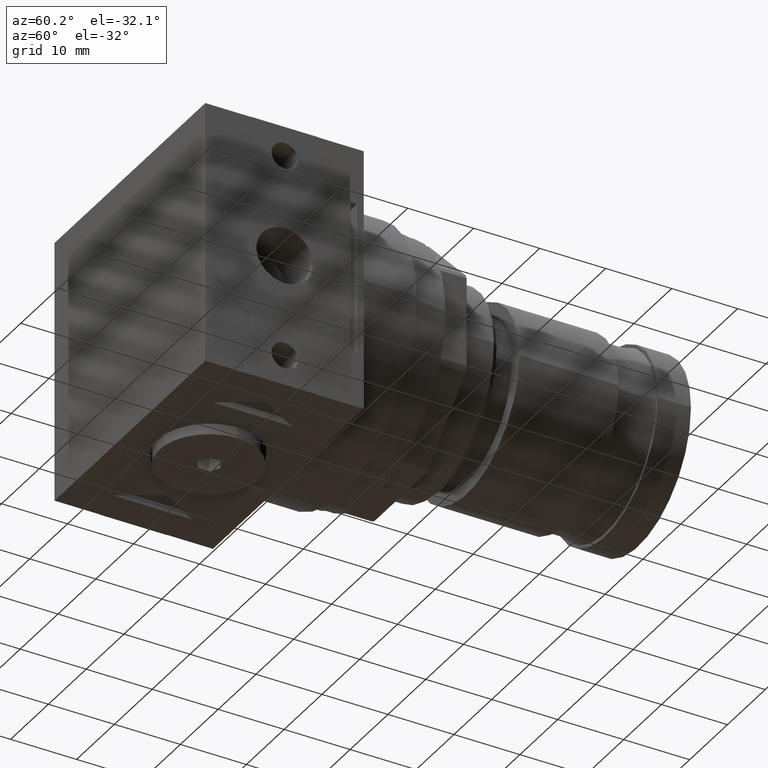
[diagram: clean part render]
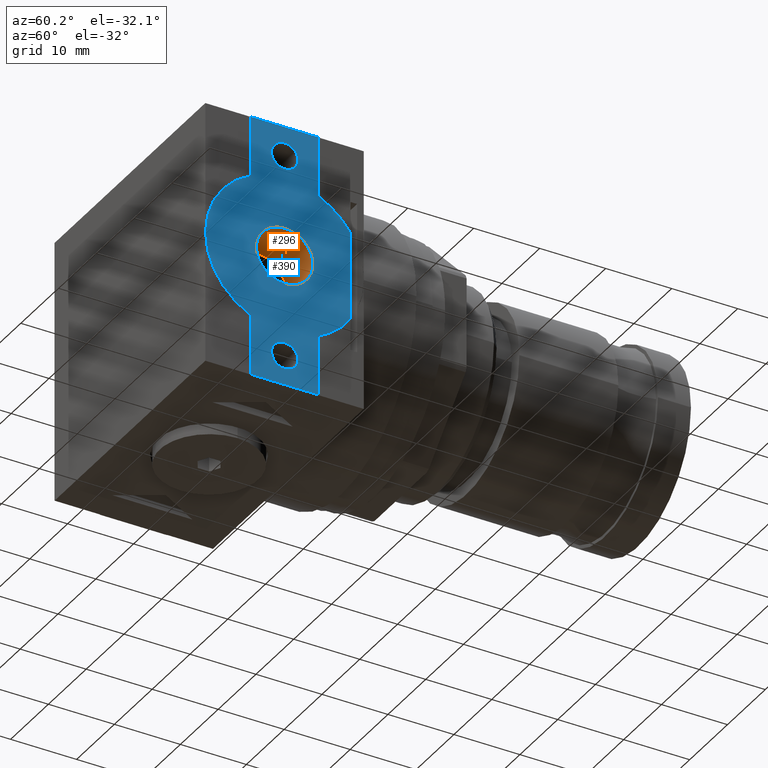
[diagram: same view with the hole feature highlighted: cylindrical wall and planar end face, labeled with their STEP entity ids]
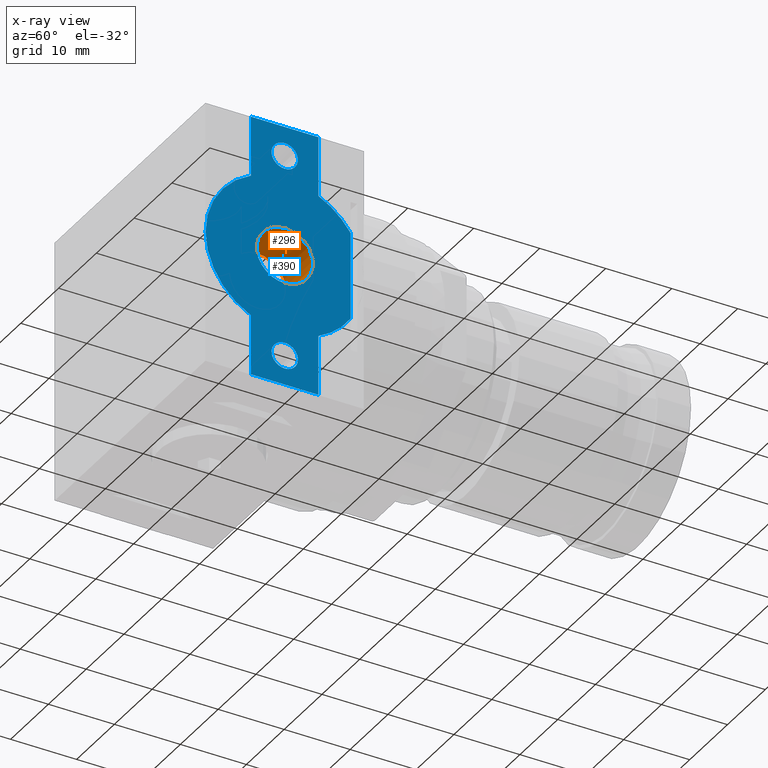
[diagram: x-ray of the same camera — body ghosted, the hole faces saturated]
A machine part, auxiliary view. The highlighted faces form one hole feature of diameter 8.566 mm: the cylindrical wall (entity #296, orange) and its adjacent planar end face (entity #390, blue) — they share a circular edge in the B-rep.
The next image is the same camera in x-ray (body ghosted, the hole faces saturated) — the bore reads through the body.
Wall:
#296 = ADVANCED_FACE( '', ( #643, #644 ), #645, .F. );
#643 = FACE_OUTER_BOUND( '', #1088, .T. );
#644 = FACE_OUTER_BOUND( '', #1089, .T. );
#645 = CYLINDRICAL_SURFACE( '', #1090, 4.28300000000000 );
#1088 = EDGE_LOOP( '', ( #1733 ) );
#1089 = EDGE_LOOP( '', ( #1734 ) );
#1090 = AXIS2_PLACEMENT_3D( '', #1735, #1736, #1737 );
#1733 = ORIENTED_EDGE( '', *, *, #2604, .T. );
#1734 = ORIENTED_EDGE( '', *, *, #2605, .F. );
#1735 = CARTESIAN_POINT( '', ( 20.0000000000000, 0.000000000000000, 0.000000000000000 ) );
#1736 = DIRECTION( '', ( -1.00000000000000, -0.000000000000000, 0.000000000000000 ) );
#1737 = DIRECTION( '', ( -0.000000000000000, 0.000000000000000, -1.00000000000000 ) );
#2604 = EDGE_CURVE( '', #3110, #3110, #3111, .T. );
#2605 = EDGE_CURVE( '', #3112, #3112, #3113, .T. );
#3110 = VERTEX_POINT( '', #3779 );
#3111 = CIRCLE( '', #3780, 4.28300000000000 );
#3112 = VERTEX_POINT( '', #3781 );
#3113 = CIRCLE( '', #3782, 4.28300000000000 );
#3779 = CARTESIAN_POINT( '', ( 20.0000000000000, 0.000000000000000, -4.28300000000000 ) );
#3780 = AXIS2_PLACEMENT_3D( '', #4372, #4373, #4374 );
#3781 = CARTESIAN_POINT( '', ( 12.8000000000000, 0.000000000000000, -4.28300000000000 ) );
#3782 = AXIS2_PLACEMENT_3D( '', #4375, #4376, #4377 );
#4372 = CARTESIAN_POINT( '', ( 20.0000000000000, 0.000000000000000, 0.000000000000000 ) );
#4373 = DIRECTION( '', ( 1.00000000000000, 0.000000000000000, -0.000000000000000 ) );
#4374 = DIRECTION( '', ( -0.000000000000000, 0.000000000000000, -1.00000000000000 ) );
#4375 = CARTESIAN_POINT( '', ( 12.8000000000000, 0.000000000000000, 0.000000000000000 ) );
#4376 = DIRECTION( '', ( 1.00000000000000, 0.000000000000000, -0.000000000000000 ) );
#4377 = DIRECTION( '', ( -0.000000000000000, 0.000000000000000, -1.00000000000000 ) );
End face:
#390 = ADVANCED_FACE( '', ( #809, #810, #811, #812 ), #813, .T. );
#809 = FACE_BOUND( '', #1254, .T. );
#810 = FACE_OUTER_BOUND( '', #1255, .T. );
#811 = FACE_BOUND( '', #1256, .T. );
#812 = FACE_BOUND( '', #1257, .T. );
#813 = PLANE( '', #1258 );
#1254 = EDGE_LOOP( '', ( #2114 ) );
#1255 = EDGE_LOOP( '', ( #2115, #2116, #2117, #2118, #2119, #2120, #2121, #2122, #2123, #2124 ) );
#1256 = EDGE_LOOP( '', ( #2125 ) );
#1257 = EDGE_LOOP( '', ( #2126 ) );
#1258 = AXIS2_PLACEMENT_3D( '', #2127, #2128, #2129 );
#2114 = ORIENTED_EDGE( '', *, *, #2604, .F. );
#2115 = ORIENTED_EDGE( '', *, *, #2757, .F. );
#2116 = ORIENTED_EDGE( '', *, *, #2758, .T. );
#2117 = ORIENTED_EDGE( '', *, *, #2754, .T. );
#2118 = ORIENTED_EDGE( '', *, *, #2670, .T. );
#2119 = ORIENTED_EDGE( '', *, *, #2427, .T. );
#2120 = ORIENTED_EDGE( '', *, *, #2674, .T. );
#2121 = ORIENTED_EDGE( '', *, *, #2706, .T. );
#2122 = ORIENTED_EDGE( '', *, *, #2748, .T. );
#2123 = ORIENTED_EDGE( '', *, *, #2759, .T. );
#2124 = ORIENTED_EDGE( '', *, *, #2740, .T. );
#2125 = ORIENTED_EDGE( '', *, *, #2760, .F. );
#2126 = ORIENTED_EDGE( '', *, *, #2531, .F. );
#2127 = CARTESIAN_POINT( '', ( 20.0000000000000, 8.67361737988404E-015, 1.73472347597681E-015 ) );
#2128 = DIRECTION( '', ( 1.00000000000000, 0.000000000000000, 0.000000000000000 ) );
#2129 = DIRECTION( '', ( 0.000000000000000, 0.000000000000000, -1.00000000000000 ) );
#2427 = EDGE_CURVE( '', #2825, #2823, #2826, .T. );
#2531 = EDGE_CURVE( '', #2998, #2998, #2999, .T. );
#2604 = EDGE_CURVE( '', #3110, #3110, #3111, .T. );
#2670 = EDGE_CURVE( '', #3200, #2825, #3207, .T. );
#2674 = EDGE_CURVE( '', #2823, #3210, #3212, .T. );
#2706 = EDGE_CURVE( '', #3210, #3259, #3261, .T. );
#2740 = EDGE_CURVE( '', #3305, #3303, #3306, .T. );
#2748 = EDGE_CURVE( '', #3259, #3315, #3317, .T. );
#2754 = EDGE_CURVE( '', #3325, #3200, #3326, .T. );
#2757 = EDGE_CURVE( '', #3329, #3303, #3330, .T. );
#2758 = EDGE_CURVE( '', #3329, #3325, #3331, .T. );
#2759 = EDGE_CURVE( '', #3315, #3305, #3332, .T. );
#2760 = EDGE_CURVE( '', #3333, #3333, #3334, .T. );
#2823 = VERTEX_POINT( '', #3399 );
#2825 = VERTEX_POINT( '', #3402 );
#2826 = LINE( '', #3403, #3404 );
#2998 = VERTEX_POINT( '', #3635 );
#2999 = CIRCLE( '', #3636, 2.00000000000000 );
#3110 = VERTEX_POINT( '', #3779 );
#3111 = CIRCLE( '', #3780, 4.28300000000000 );
#3200 = VERTEX_POINT( '', #3896 );
#3207 = LINE( '', #3908, #3909 );
#3210 = VERTEX_POINT( '', #3912 );
#3212 = CIRCLE( '', #3915, 12.0000000000000 );
#3259 = VERTEX_POINT( '', #3978 );
#3261 = LINE( '', #3981, #3982 );
#3303 = VERTEX_POINT( '', #4035 );
#3305 = VERTEX_POINT( '', #4038 );
#3306 = CIRCLE( '', #4039, 12.0000000000000 );
#3315 = VERTEX_POINT( '', #4051 );
#3317 = LINE( '', #4054, #4055 );
#3325 = VERTEX_POINT( '', #4065 );
#3326 = LINE( '', #4066, #4067 );
#3329 = VERTEX_POINT( '', #4071 );
#3330 = LINE( '', #4072, #4073 );
#3331 = CIRCLE( '', #4074, 12.0000000000000 );
#3332 = LINE( '', #4075, #4076 );
#3333 = VERTEX_POINT( '', #4077 );
#3334 = CIRCLE( '', #4078, 2.00000000000000 );
#3399 = CARTESIAN_POINT( '', ( 20.0000000000000, -5.10000000000000, 10.8623201941390 ) );
#3402 = CARTESIAN_POINT( '', ( 20.0000000000000, -5.10000000000000, 20.0000000000000 ) );
#3403 = CARTESIAN_POINT( '', ( 20.0000000000000, -5.10000000000000, 20.0000000000000 ) );
#3404 = VECTOR( '', #4148, 1000.00000000000 );
#3635 = CARTESIAN_POINT( '', ( 20.0000000000000, 0.000000000000000, 13.5000000000000 ) );
#3636 = AXIS2_PLACEMENT_3D( '', #4265, #4266, #4267 );
#3779 = CARTESIAN_POINT( '', ( 20.0000000000000, 0.000000000000000, -4.28300000000000 ) );
#3780 = AXIS2_PLACEMENT_3D( '', #4372, #4373, #4374 );
#3896 = CARTESIAN_POINT( '', ( 20.0000000000000, 5.10000000000000, 20.0000000000000 ) );
#3908 = CARTESIAN_POINT( '', ( 20.0000000000000, 5.10000000000000, 20.0000000000000 ) );
#3909 = VECTOR( '', #4446, 1000.00000000000 );
#3912 = CARTESIAN_POINT( '', ( 20.0000000000000, -5.10000000000000, -10.8623201941390 ) );
#3915 = AXIS2_PLACEMENT_3D( '', #4448, #4449, #4450 );
#3978 = CARTESIAN_POINT( '', ( 20.0000000000000, -5.10000000000000, -20.0000000000000 ) );
#3981 = CARTESIAN_POINT( '', ( 20.0000000000000, -5.10000000000000, -10.8623201941390 ) );
#3982 = VECTOR( '', #4480, 1000.00000000000 );
#4035 = CARTESIAN_POINT( '', ( 20.0000000000000, 10.0000000000000, -6.63324958071079 ) );
#4038 = CARTESIAN_POINT( '', ( 20.0000000000000, 5.10000000000000, -10.8623201941390 ) );
#4039 = AXIS2_PLACEMENT_3D( '', #4517, #4518, #4519 );
#4051 = CARTESIAN_POINT( '', ( 20.0000000000000, 5.10000000000000, -20.0000000000000 ) );
#4054 = CARTESIAN_POINT( '', ( 20.0000000000000, -5.10000000000000, -20.0000000000000 ) );
#4055 = VECTOR( '', #4527, 1000.00000000000 );
#4065 = CARTESIAN_POINT( '', ( 20.0000000000000, 5.10000000000000, 10.8623201941390 ) );
#4066 = CARTESIAN_POINT( '', ( 20.0000000000000, 5.10000000000000, 10.8623201941390 ) );
#4067 = VECTOR( '', #4533, 1000.00000000000 );
#4071 = CARTESIAN_POINT( '', ( 20.0000000000000, 10.0000000000000, 6.63324958071079 ) );
#4072 = CARTESIAN_POINT( '', ( 20.0000000000000, 10.0000000000000, 1.73472347597681E-015 ) );
#4073 = VECTOR( '', #4535, 1000.00000000000 );
#4074 = AXIS2_PLACEMENT_3D( '', #4536, #4537, #4538 );
#4075 = CARTESIAN_POINT( '', ( 20.0000000000000, 5.10000000000000, -20.0000000000000 ) );
#4076 = VECTOR( '', #4539, 1000.00000000000 );
#4077 = CARTESIAN_POINT( '', ( 20.0000000000000, 0.000000000000000, -17.5000000000000 ) );
#4078 = AXIS2_PLACEMENT_3D( '', #4540, #4541, #4542 );
#4148 = DIRECTION( '', ( 0.000000000000000, 0.000000000000000, -1.00000000000000 ) );
#4265 = CARTESIAN_POINT( '', ( 20.0000000000000, 0.000000000000000, 15.5000000000000 ) );
#4266 = DIRECTION( '', ( 1.00000000000000, 0.000000000000000, 0.000000000000000 ) );
#4267 = DIRECTION( '', ( 0.000000000000000, 0.000000000000000, -1.00000000000000 ) );
#4372 = CARTESIAN_POINT( '', ( 20.0000000000000, 0.000000000000000, 0.000000000000000 ) );
#4373 = DIRECTION( '', ( 1.00000000000000, 0.000000000000000, -0.000000000000000 ) );
#4374 = DIRECTION( '', ( -0.000000000000000, 0.000000000000000, -1.00000000000000 ) );
#4446 = DIRECTION( '', ( 0.000000000000000, -1.00000000000000, 0.000000000000000 ) );
#4448 = CARTESIAN_POINT( '', ( 20.0000000000000, 8.67361737988404E-015, 1.73472347597681E-015 ) );
#4449 = DIRECTION( '', ( 1.00000000000000, 0.000000000000000, 0.000000000000000 ) );
#4450 = DIRECTION( '', ( 0.000000000000000, 0.000000000000000, -1.00000000000000 ) );
#4480 = DIRECTION( '', ( 0.000000000000000, 0.000000000000000, -1.00000000000000 ) );
#4517 = CARTESIAN_POINT( '', ( 20.0000000000000, -8.67361737988404E-015, -1.73472347597681E-015 ) );
#4518 = DIRECTION( '', ( 1.00000000000000, 0.000000000000000, 0.000000000000000 ) );
#4519 = DIRECTION( '', ( 0.000000000000000, 0.000000000000000, -1.00000000000000 ) );
#4527 = DIRECTION( '', ( 0.000000000000000, 1.00000000000000, 0.000000000000000 ) );
#4533 = DIRECTION( '', ( 0.000000000000000, 0.000000000000000, 1.00000000000000 ) );
#4535 = DIRECTION( '', ( 0.000000000000000, 0.000000000000000, -1.00000000000000 ) );
#4536 = CARTESIAN_POINT( '', ( 20.0000000000000, -8.67361737988404E-015, -1.73472347597681E-015 ) );
#4537 = DIRECTION( '', ( 1.00000000000000, 0.000000000000000, 0.000000000000000 ) );
#4538 = DIRECTION( '', ( 0.000000000000000, 0.000000000000000, -1.00000000000000 ) );
#4539 = DIRECTION( '', ( 0.000000000000000, 0.000000000000000, 1.00000000000000 ) );
#4540 = CARTESIAN_POINT( '', ( 20.0000000000000, 0.000000000000000, -15.5000000000000 ) );
#4541 = DIRECTION( '', ( 1.00000000000000, 0.000000000000000, 0.000000000000000 ) );
#4542 = DIRECTION( '', ( 0.000000000000000, 0.000000000000000, -1.00000000000000 ) );